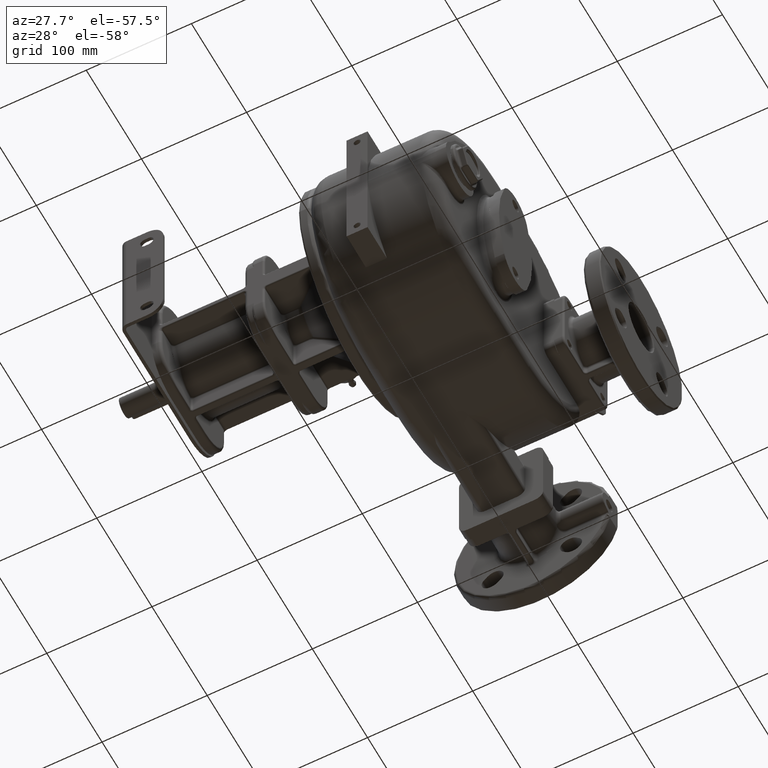
[diagram: clean part render]
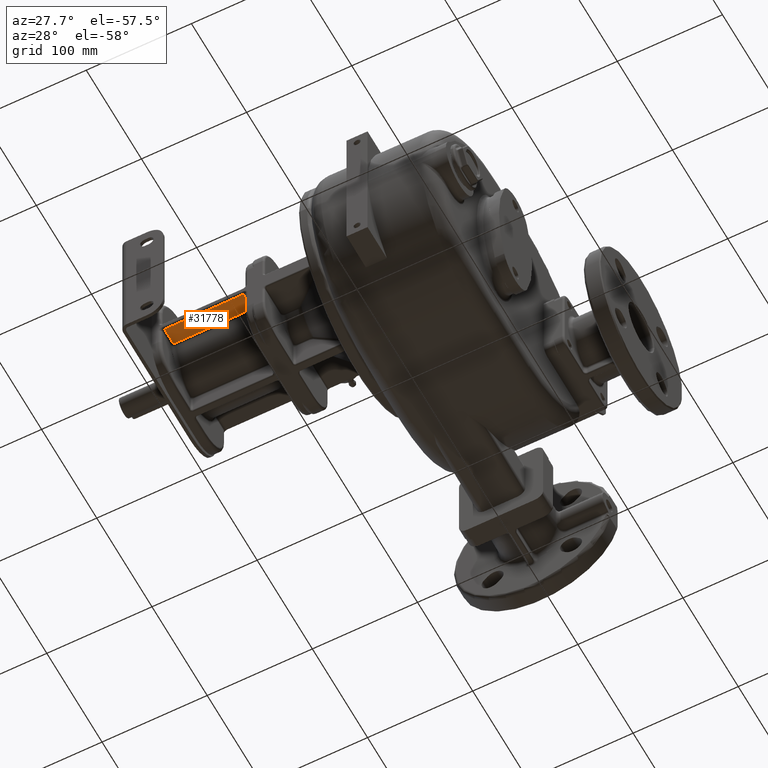
[diagram: same view with one face highlighted and labeled with its STEP entity id]
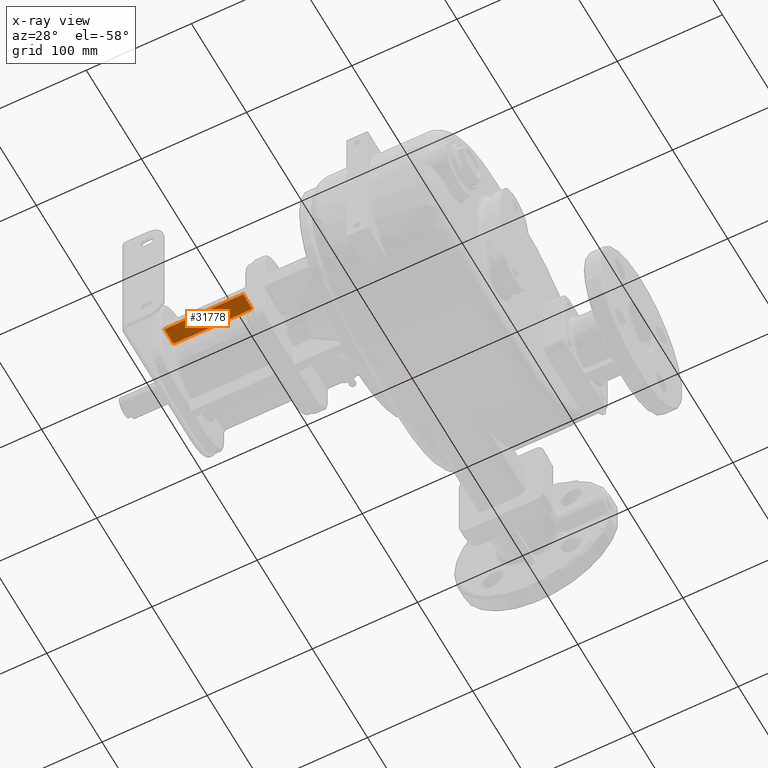
[diagram: x-ray of the same camera — body ghosted, the highlighted face saturated]
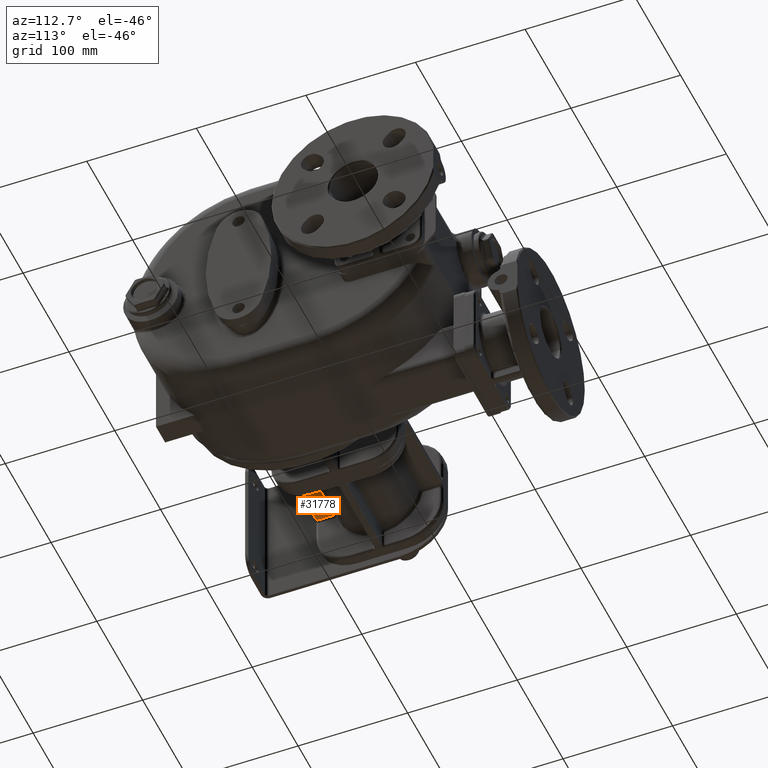
[diagram: same view with one face highlighted and labeled with its STEP entity id]
A machine part, auxiliary view. The second image highlights one B-rep face of the part: STEP entity #31778.
The next image is the same camera in x-ray: the body ghosted, the highlighted face saturated — about 0% of this face is hidden behind the body in this view.
A second angle (auxiliary view) of the same face is appended — the face is thin or edge-on in the first view.
In plain terms, the highlighted planar face has unit normal (0, 0, 1).
Its self-contained STEP definition (entity closure, byte-faithful):
#10458=CARTESIAN_POINT('',(-1.315E2,5.5E1,-3.5E0));
#10459=DIRECTION('',(0.E0,0.E0,1.E0));
#10460=DIRECTION('',(-1.E0,0.E0,0.E0));
#10461=AXIS2_PLACEMENT_3D('',#10458,#10459,#10460);
#10463=DIRECTION('',(0.E0,-1.E0,0.E0));
#10464=VECTOR('',#10463,1.437057716383E1);
#10465=CARTESIAN_POINT('',(-1.365E2,6.937057716383E1,-3.5E0));
#10466=LINE('',#10465,#10464);
#10467=CARTESIAN_POINT('',(-1.375E2,7.037992932868E1,-3.5E0));
#10468=CARTESIAN_POINT('',(-1.373636938433E2,7.037992878948E1,-3.5E0));
#10469=CARTESIAN_POINT('',(-1.371126278469E2,7.032785219747E1,-3.5E0));
#10470=CARTESIAN_POINT('',(-1.367760926870E2,7.010608030103E1,-3.5E0));
#10471=CARTESIAN_POINT('',(-1.365529415745E2,6.976597780765E1,-3.5E0));
#10472=CARTESIAN_POINT('',(-1.365000005389E2,6.951002725860E1,-3.5E0));
#10473=CARTESIAN_POINT('',(-1.365E2,6.937057716383E1,-3.5E0));
#10475=DIRECTION('',(1.E0,0.E0,0.E0));
#10476=VECTOR('',#10475,7.3E1);
#10477=CARTESIAN_POINT('',(-2.105E2,7.037992932868E1,-3.5E0));
#10478=LINE('',#10477,#10476);
#10479=CARTESIAN_POINT('',(-2.115E2,6.937057716383E1,-3.5E0));
#10480=CARTESIAN_POINT('',(-2.114999994684E2,6.951002712493E1,-3.5E0));
#10481=CARTESIAN_POINT('',(-2.114470585480E2,6.976597749130E1,-3.5E0));
#10482=CARTESIAN_POINT('',(-2.112239074861E2,7.010608012780E1,-3.5E0));
#10483=CARTESIAN_POINT('',(-2.108873724668E2,7.032785207562E1,-3.5E0));
#10484=CARTESIAN_POINT('',(-2.106363062891E2,7.037992878198E1,-3.5E0));
#10485=CARTESIAN_POINT('',(-2.105E2,7.037992932868E1,-3.5E0));
#10487=DIRECTION('',(0.E0,1.E0,0.E0));
#10488=VECTOR('',#10487,1.437057716383E1);
#10489=CARTESIAN_POINT('',(-2.115E2,5.5E1,-3.5E0));
#10490=LINE('',#10489,#10488);
#10491=CARTESIAN_POINT('',(-2.165E2,5.5E1,-3.5E0));
#10492=DIRECTION('',(0.E0,0.E0,1.E0));
#10493=DIRECTION('',(9.797958972699E-1,-1.999999992325E-1,0.E0));
#10494=AXIS2_PLACEMENT_3D('',#10491,#10492,#10493);
#10496=DIRECTION('',(-1.E0,0.E0,-7.789792442152E-12));
#10497=VECTOR('',#10496,7.520204101910E1);
#10498=CARTESIAN_POINT('',(-1.363989794904E2,5.4E1,-3.500000012017E0));
#10499=LINE('',#10498,#10497);
#15143=CARTESIAN_POINT('',(-1.365E2,6.937057716383E1,-3.5E0));
#15144=CARTESIAN_POINT('',(-1.365E2,5.5E1,-3.5E0));
#15145=VERTEX_POINT('',#15143);
#15146=VERTEX_POINT('',#15144);
#15150=CARTESIAN_POINT('',(-2.105E2,7.037992932868E1,-3.5E0));
#15151=CARTESIAN_POINT('',(-1.375E2,7.037992932868E1,-3.5E0));
#15152=VERTEX_POINT('',#15150);
#15153=VERTEX_POINT('',#15151);
#15157=CARTESIAN_POINT('',(-2.115E2,5.5E1,-3.5E0));
#15158=CARTESIAN_POINT('',(-2.115E2,6.937057716383E1,-3.5E0));
#15159=VERTEX_POINT('',#15157);
#15160=VERTEX_POINT('',#15158);
#15251=CARTESIAN_POINT('',(-1.363989794863E2,5.400000000381E1,-3.5E0));
#15252=VERTEX_POINT('',#15251);
#15271=CARTESIAN_POINT('',(-2.116010205137E2,5.400000000384E1,-3.5E0));
#15272=VERTEX_POINT('',#15271);
#31756=CARTESIAN_POINT('',(-1.775E2,1.1E2,-3.5E0));
#31757=DIRECTION('',(0.E0,0.E0,1.E0));
#31758=DIRECTION('',(1.E0,0.E0,0.E0));
#31759=AXIS2_PLACEMENT_3D('',#31756,#31757,#31758);
#31760=PLANE('',#31759);
#31761=ORIENTED_EDGE('',*,*,#31746,.F.);
#31763=ORIENTED_EDGE('',*,*,#31762,.F.);
#31765=ORIENTED_EDGE('',*,*,#31764,.F.);
#31767=ORIENTED_EDGE('',*,*,#31766,.F.);
#31769=ORIENTED_EDGE('',*,*,#31768,.F.);
#31771=ORIENTED_EDGE('',*,*,#31770,.F.);
#31773=ORIENTED_EDGE('',*,*,#31772,.F.);
#31775=ORIENTED_EDGE('',*,*,#31774,.F.);
#31776=EDGE_LOOP('',(#31761,#31763,#31765,#31767,#31769,#31771,#31773,#31775));
#31777=FACE_OUTER_BOUND('',#31776,.F.);
#31778=ADVANCED_FACE('',(#31777),#31760,.F.);
#10462=CIRCLE('',#10461,5.E0);
#10474=B_SPLINE_CURVE_WITH_KNOTS('',3,(#10467,#10468,#10469,#10470,#10471,
#10472,#10473),.UNSPECIFIED.,.F.,.F.,(4,1,1,1,4),(0.E0,2.5E-1,5.E-1,7.5E-1,
1.E0),.UNSPECIFIED.);
#10486=B_SPLINE_CURVE_WITH_KNOTS('',3,(#10479,#10480,#10481,#10482,#10483,
#10484,#10485),.UNSPECIFIED.,.F.,.F.,(4,1,1,1,4),(0.E0,2.5E-1,5.E-1,7.5E-1,
1.E0),.UNSPECIFIED.);
#10495=CIRCLE('',#10494,5.E0);
#31746=EDGE_CURVE('',#15146,#15252,#10462,.T.);
#31762=EDGE_CURVE('',#15145,#15146,#10466,.T.);
#31764=EDGE_CURVE('',#15153,#15145,#10474,.T.);
#31766=EDGE_CURVE('',#15152,#15153,#10478,.T.);
#31768=EDGE_CURVE('',#15160,#15152,#10486,.T.);
#31770=EDGE_CURVE('',#15159,#15160,#10490,.T.);
#31772=EDGE_CURVE('',#15272,#15159,#10495,.T.);
#31774=EDGE_CURVE('',#15252,#15272,#10499,.T.);